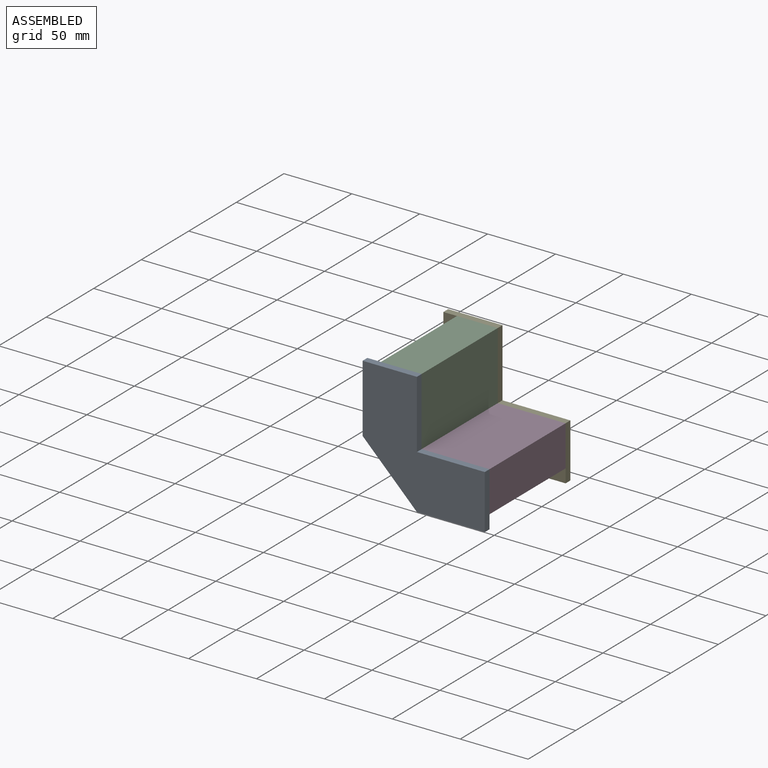
[diagram: assembled view]
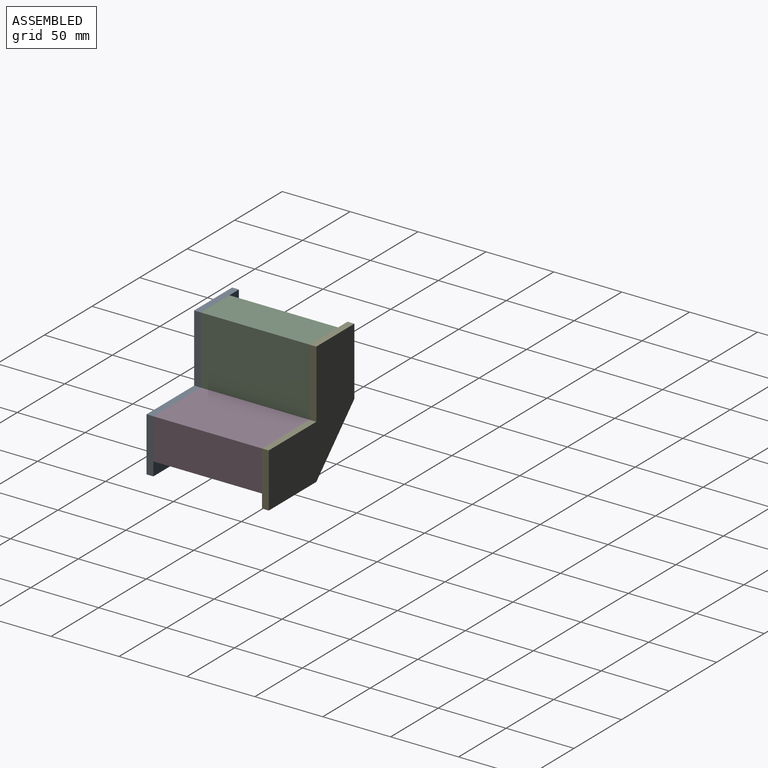
[diagram: assembled view, second angle]
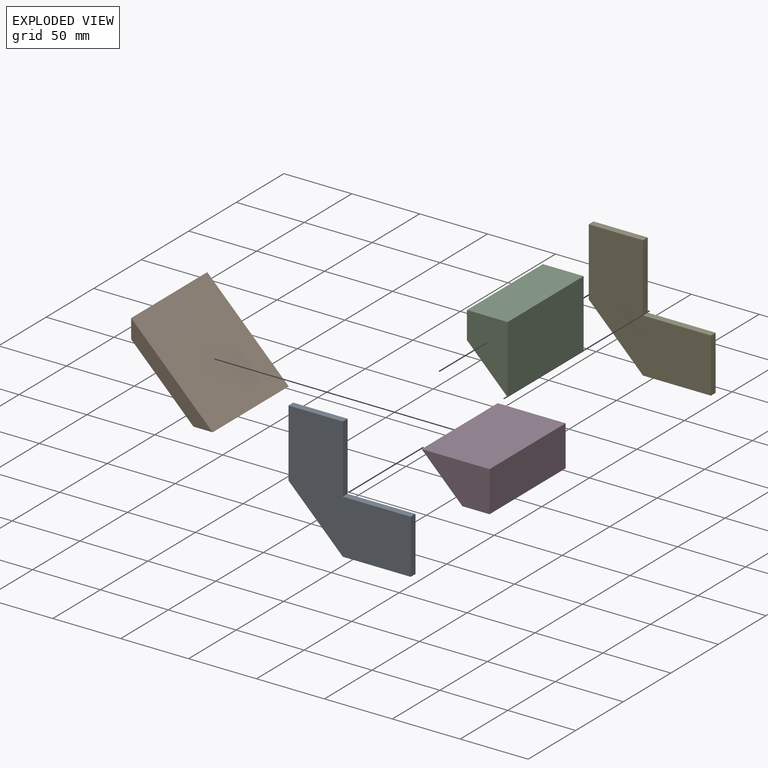
[diagram: exploded view]
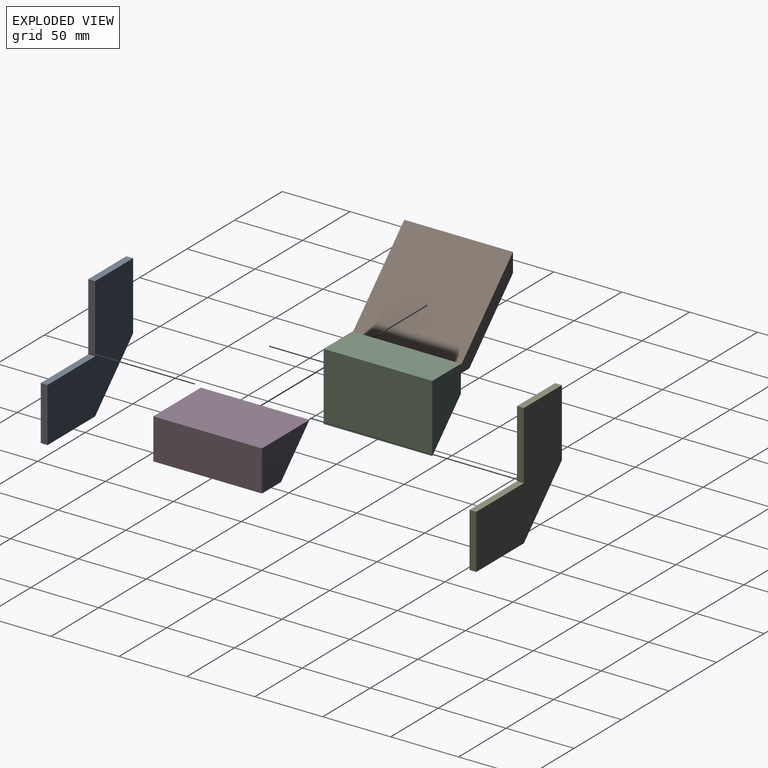
[diagram: exploded view, second angle]
ASSEMBLY  parts=5 mates=4
PART A: 9 faces, bbox 90x5x90 mm
  f0: plane 50x5mm, normal (-1,0,0), area 250mm2, adj f1,f6,f7,f8
  f1: plane 40x40mm, normal (-0.71,0,-0.71), area 282.8mm2, adj f0,f2,f7,f8
  f2: plane 50x5mm, normal (0,0,-1), area 250mm2, adj f1,f3,f7,f8
  f3: plane 40x5mm, normal (1,0,0), area 200mm2, adj f2,f4,f7,f8
  f4: plane 50x5mm, normal (0,0,1), area 250mm2, adj f3,f5,f7,f8
  f5: plane 50x5mm, normal (1,0,0), area 250mm2, adj f4,f6,f7,f8
  f6: plane 40x5mm, normal (0,0,1), area 200mm2, adj f0,f5,f7,f8
  f7: plane 90x90mm, normal (0,-1,0), area 4800mm2, adj f0,f1,f2,f3,f4,f5,f6
  f8: plane 90x90mm, normal (0,1,0), area 4800mm2, adj f0,f1,f2,f3,f4,f5,f6
PART B: 6 faces, bbox 60x80x60 mm
  f0: plane 80x60mm, normal (0.71,0,0.71), area 6788.2mm2, adj f1,f3,f4,f5
  f1: plane 80x14.14mm, normal (-1,0,0), area 1131.4mm2, adj f0,f2,f4,f5
  f2: plane 80x45.86mm, normal (-0.71,0,-0.71), area 5188.2mm2, adj f1,f3,f4,f5
  f3: plane 80x14.14mm, normal (0,0,-1), area 1131.4mm2, adj f0,f2,f4,f5
  f4: plane 60x60mm, normal (0,-1,0), area 748.5mm2, adj f0,f1,f2,f3
  f5: plane 60x60mm, normal (0,1,0), area 748.5mm2, adj f0,f1,f2,f3
PART C: 6 faces, bbox 30x80x50 mm
  f0: plane 80x20mm, normal (-1,0,0), area 1600mm2, adj f1,f3,f4,f5
  f1: plane 80x30mm, normal (-0.71,0,-0.71), area 3394.1mm2, adj f0,f2,f4,f5
  f2: plane 80x50mm, normal (1,0,0), area 4000mm2, adj f1,f3,f4,f5
  f3: plane 80x30mm, normal (0,0,1), area 2400mm2, adj f0,f2,f4,f5
  f4: plane 50x30mm, normal (0,-1,0), area 1050mm2, adj f0,f1,f2,f3
  f5: plane 50x30mm, normal (0,1,0), area 1050mm2, adj f0,f1,f2,f3
PART D: same geometry as C
PART E: same geometry as A
PLACE A t=(-38.77,-95.08,-36.44)mm
PLACE B t=(-167.39,-15.08,-24.2)mm
PLACE C t=(-172.46,-15.08,-33.03)mm
PLACE D rot(axis=(0.71,0,0.71),180deg) t=(-84.56,-95.08,-120.92)mm
PLACE E t=(-38.77,-10.08,-36.44)mm
MATE fastened D.f5 <-> A.f8  axis (0,-1,0) through (-21.89,-95.08,-20.36)mm
MATE fastened E.f7 <-> C.f5  axis (0,-1,0) through (-71.89,-15.08,29.64)mm
MATE fastened C.f1 <-> B.f0  axis (-0.71,0,-0.71) through (-101.89,-15.08,9.64)mm
MATE fastened C.f4 <-> A.f8  axis (0,-1,0) through (-71.89,-95.08,29.64)mm
